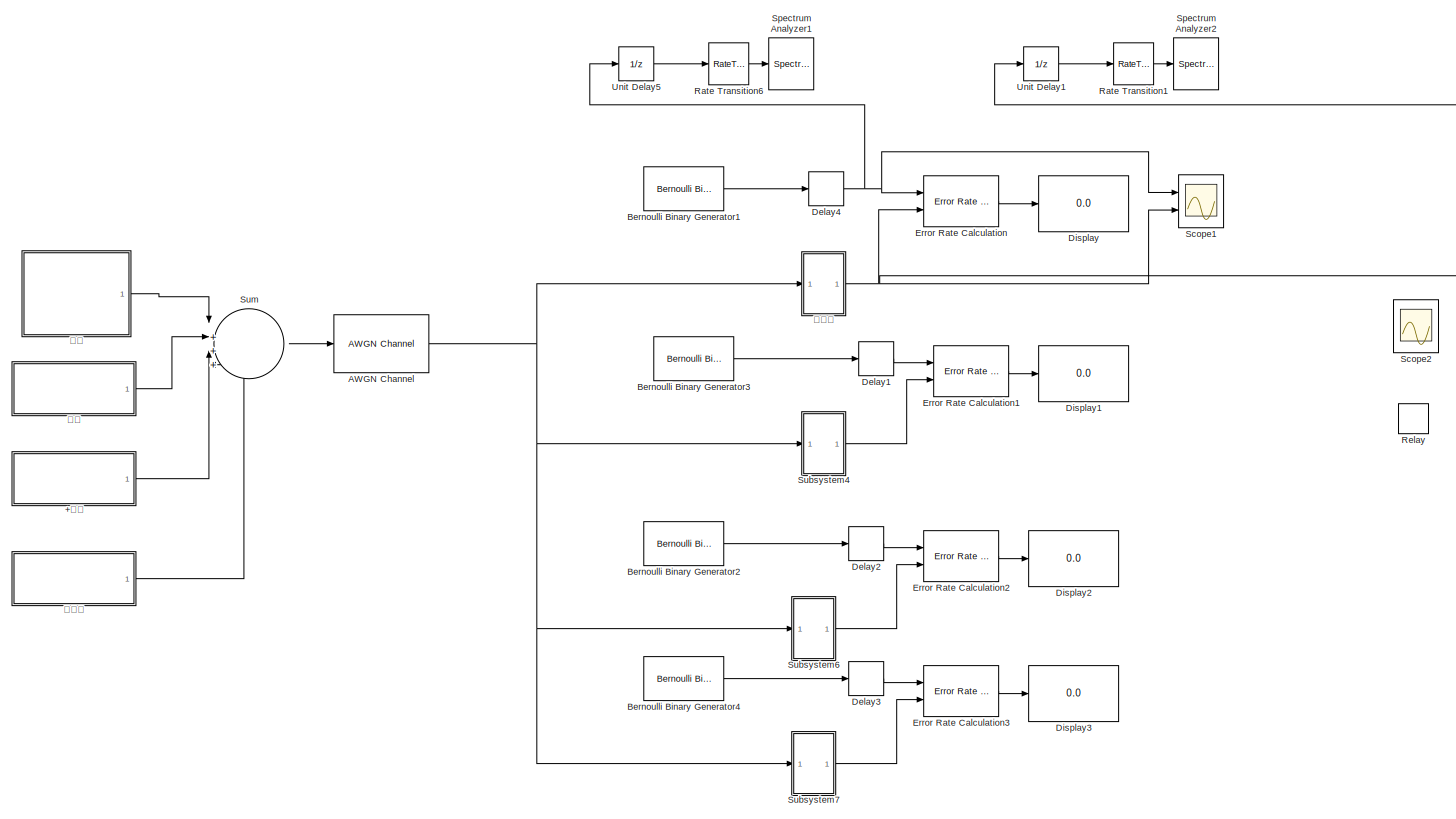
[diagram: root canvas - part 1/1, most of the canvas]
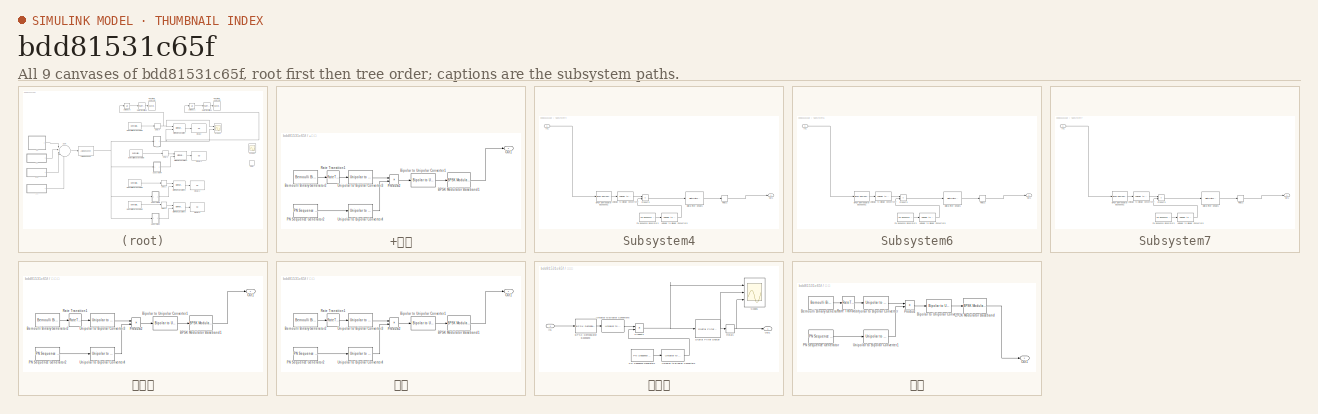
[diagram: thumbnail index - all 9 canvases of the model, root first then tree order]
MODEL slx_bdd81531c65f
KIND model
CONFIG AbsTol = auto
CONFIG EnableMultiTasking = off
CONFIG FixedStep = auto
CONFIG MaxStep = auto
CONFIG MinStep = auto
CONFIG RelTol = 1e-3
CONFIG SampleTimeConstraint = Unconstrained
CONFIG Solver = VariableStepAuto
CONFIG SolverName = VariableStepAuto
CONFIG StartTime = 0.0
CONFIG StopTime = 10
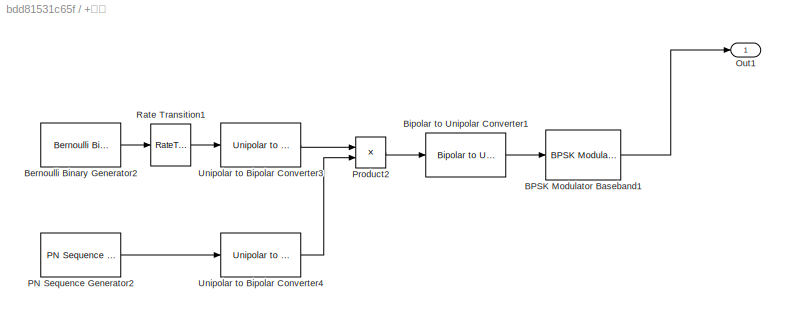
BLOCK [SubSystem] +关注
  Ports = [0, 1]
  RequestExecContextInheritance = off
BLOCK [Reference] +关注/BPSK Modulator Baseband1  REF=commdigbbndpm3/BPSK
Modulator
Baseband
  Ports = [1, 1]
  SourceBlock = commdigbbndpm3/BPSK\nModulator\nBaseband
  SourceProductBaseCode = CM
  SourceType = BPSK Modulator Baseband
BLOCK [Reference] +关注/Bernoulli Binary Generator2  REF=commrandsrc3/Bernoulli Binary
Generator
  Ports = [0, 1]
  SourceBlock = commrandsrc3/Bernoulli Binary\nGenerator
  SourceProductBaseCode = CM
  SourceType = Bernoulli Binary Generator
BLOCK [Reference] +关注/Bipolar to Unipolar Converter1  REF=commutil2/Bipolar to
Unipolar
Converter
  Ports = [1, 1]
  SourceBlock = commutil2/Bipolar to\nUnipolar\nConverter
  SourceProductBaseCode = CM
  SourceType = Bipolar to Unipolar Converter
BLOCK [Outport] +关注/Out1
BLOCK [Reference] +关注/PN Sequence Generator2  REF=commseqgen3/PN Sequence
Generator
  Ports = [0, 1]
  SourceBlock = commseqgen3/PN Sequence\nGenerator
  SourceProductBaseCode = CM
  SourceType = PN Sequence Generator
BLOCK [Product] +关注/Product2
  Ports = [2, 1]
BLOCK [RateTransition] +关注/Rate Transition1
  OutPortSampleTime = 1/3200
  OutPortSampleTimeMultiple = 20
BLOCK [Reference] +关注/Unipolar to Bipolar Converter3  REF=commutil2/Unipolar to
Bipolar
Converter
  Ports = [1, 1]
  SourceBlock = commutil2/Unipolar to\nBipolar\nConverter
  SourceProductBaseCode = CM
  SourceType = Unipolar to Bipolar Converter
BLOCK [Reference] +关注/Unipolar to Bipolar Converter4  REF=commutil2/Unipolar to
Bipolar
Converter
  Ports = [1, 1]
  SourceBlock = commutil2/Unipolar to\nBipolar\nConverter
  SourceProductBaseCode = CM
  SourceType = Unipolar to Bipolar Converter
BLOCK [Reference] AWGN Channel  REF=commchan3/AWGN
Channel
  Ports = [1, 1]
  SourceBlock = commchan3/AWGN\nChannel
  SourceProductBaseCode = CM
  SourceType = AWGN Channel
  UserDataPersistent = on
BLOCK [Reference] Bernoulli Binary Generator1  REF=commrandsrc3/Bernoulli Binary
Generator
  Ports = [0, 1]
  SourceBlock = commrandsrc3/Bernoulli Binary\nGenerator
  SourceProductBaseCode = CM
  SourceType = Bernoulli Binary Generator
BLOCK [Reference] Bernoulli Binary Generator2  REF=commrandsrc3/Bernoulli Binary
Generator
  Ports = [0, 1]
  SourceBlock = commrandsrc3/Bernoulli Binary\nGenerator
  SourceProductBaseCode = CM
  SourceType = Bernoulli Binary Generator
BLOCK [Reference] Bernoulli Binary Generator3  REF=commrandsrc3/Bernoulli Binary
Generator
  Ports = [0, 1]
  SourceBlock = commrandsrc3/Bernoulli Binary\nGenerator
  SourceProductBaseCode = CM
  SourceType = Bernoulli Binary Generator
BLOCK [Reference] Bernoulli Binary Generator4  REF=commrandsrc3/Bernoulli Binary
Generator
  Ports = [0, 1]
  SourceBlock = commrandsrc3/Bernoulli Binary\nGenerator
  SourceProductBaseCode = CM
  SourceType = Bernoulli Binary Generator
BLOCK [Delay] Delay1
  InputPortMap = u0
  Ports = [1, 1]
BLOCK [Delay] Delay2
  InputPortMap = u0
  Ports = [1, 1]
BLOCK [Delay] Delay3
  InputPortMap = u0
  Ports = [1, 1]
BLOCK [Delay] Delay4
  InputPortMap = u0
  Ports = [1, 1]
BLOCK [Display] Display
  Decimation = 1
  Ports = [1]
BLOCK [Display] Display1
  Decimation = 1
  Ports = [1]
BLOCK [Display] Display2
  Decimation = 1
  Ports = [1]
BLOCK [Display] Display3
  Decimation = 1
  Ports = [1]
BLOCK [Reference] Error Rate Calculation  REF=commsink2/Error Rate
Calculation
  Ports = [2, 1]
  SourceBlock = commsink2/Error Rate\nCalculation
  SourceProductBaseCode = CM
  SourceType = Error Rate Calculation
BLOCK [Reference] Error Rate Calculation1  REF=commsink2/Error Rate
Calculation
  Ports = [2, 1]
  SourceBlock = commsink2/Error Rate\nCalculation
  SourceProductBaseCode = CM
  SourceType = Error Rate Calculation
BLOCK [Reference] Error Rate Calculation2  REF=commsink2/Error Rate
Calculation
  Ports = [2, 1]
  SourceBlock = commsink2/Error Rate\nCalculation
  SourceProductBaseCode = CM
  SourceType = Error Rate Calculation
BLOCK [Reference] Error Rate Calculation3  REF=commsink2/Error Rate
Calculation
  Ports = [2, 1]
  SourceBlock = commsink2/Error Rate\nCalculation
  SourceProductBaseCode = CM
  SourceType = Error Rate Calculation
BLOCK [RateTransition] Rate Transition1
  OutPortSampleTime = 1/3200
BLOCK [RateTransition] Rate Transition6
  OutPortSampleTime = 1/3200
BLOCK [Relay] Relay
BLOCK [Scope] Scope1
  Floating = off
  NumInputPorts = 2
  Ports = [2]
  ScopeSpecificationString = Simulink.scopes.TimeScopeBlockCfg('CurrentConfiguration', extmgr.ConfigurationSet(extmgr.Configuration('Core','General UI',true),extmgr.Configuration('Core','Source UI',true),extmgr.Configuration('Sources','WiredSimulink',true,'DataLoggingVariableName','ScopeData1'),extmgr.Configuration('Visuals','Time Domain',true,'SerializedDisplays',{struct('MinYLimReal','-0.125','MaxYLimReal','1.125','YLabelRe...<+2068ch>
BLOCK [Scope] Scope2
  Floating = off
  NumInputPorts = 2
  Ports = [2]
  ScopeSpecificationString = Simulink.scopes.TimeScopeBlockCfg('CurrentConfiguration', extmgr.ConfigurationSet(extmgr.Configuration('Core','General UI',true),extmgr.Configuration('Core','Source UI',true),extmgr.Configuration('Sources','WiredSimulink',true,'DataLoggingVariableName','ScopeData2'),extmgr.Configuration('Visuals','Time Domain',true,'SerializedDisplays',{struct('MinYLimReal','-0.125','MaxYLimReal','1.125','YLabelRe...<+2071ch>
BLOCK [SpectrumAnalyzer] Spectrum Analyzer1
  Ports = [1]
  ScopeSpecificationString = spbscopes.SpectrumAnalyzerBlockCfg('CurrentConfiguration', extmgr.ConfigurationSet(extmgr.Configuration('Core','General UI',true),extmgr.Configuration('Core','Source UI',true),extmgr.Configuration('Sources','WiredSimulink',true),extmgr.Configuration('Visuals','Spectrum',true,'AxesProperties',struct('Color',{[0 0 0],[0 0 0]},'XColor',{[0.686274509803922 0.686274509803922 0.686274509803922],[0.68627...<+1917ch>
BLOCK [SpectrumAnalyzer] Spectrum Analyzer2
  Ports = [1]
  ScopeSpecificationString = spbscopes.SpectrumAnalyzerBlockCfg('CurrentConfiguration', extmgr.ConfigurationSet(extmgr.Configuration('Core','General UI',true),extmgr.Configuration('Core','Source UI',true),extmgr.Configuration('Sources','WiredSimulink',true),extmgr.Configuration('Visuals','Spectrum',true,'AxesProperties',struct('Color',{[0 0 0],[0 0 0]},'XColor',{[0.686274509803922 0.686274509803922 0.686274509803922],[0.68627...<+1944ch>
BLOCK [SubSystem] Subsystem4
  Ports = [1, 1]
  RequestExecContextInheritance = off
BLOCK [Reference] Subsystem4/BPSK Demodulator Baseband1  REF=commdigbbndpm3/BPSK
Demodulator
Baseband
  Ports = [1, 1]
  SourceBlock = commdigbbndpm3/BPSK\nDemodulator\nBaseband
  SourceProductBaseCode = CM
  SourceType = BPSK Demodulator Baseband
BLOCK [Reference] Subsystem4/Digital Filter Design1  REF=dsparch4/Digital
Filter Design
  Ports = [1, 1]
  SourceBlock = dsparch4/Digital\nFilter Design
  SourceProductBaseCode = DS
  SourceType = Digital Filter Design
  UserDataPersistent = on
BLOCK [Inport] Subsystem4/In1
BLOCK [Outport] Subsystem4/Out1
BLOCK [Reference] Subsystem4/PN Sequence Generator3  REF=commseqgen3/PN Sequence
Generator
  Ports = [0, 1]
  SourceBlock = commseqgen3/PN Sequence\nGenerator
  SourceProductBaseCode = CM
  SourceType = PN Sequence Generator
BLOCK [Product] Subsystem4/Product3
  Ports = [2, 1]
BLOCK [Relay] Subsystem4/Relay2
  OffSwitchValue = 0
  OnSwitchValue = 0
BLOCK [Reference] Subsystem4/Unipolar to Bipolar Converter5  REF=commutil2/Unipolar to
Bipolar
Converter
  Ports = [1, 1]
  SourceBlock = commutil2/Unipolar to\nBipolar\nConverter
  SourceProductBaseCode = CM
  SourceType = Unipolar to Bipolar Converter
BLOCK [Reference] Subsystem4/Unipolar to Bipolar Converter7  REF=commutil2/Unipolar to
Bipolar
Converter
  Ports = [1, 1]
  SourceBlock = commutil2/Unipolar to\nBipolar\nConverter
  SourceProductBaseCode = CM
  SourceType = Unipolar to Bipolar Converter
BLOCK [SubSystem] Subsystem6
  Ports = [1, 1]
  RequestExecContextInheritance = off
BLOCK [Reference] Subsystem6/BPSK Demodulator Baseband1  REF=commdigbbndpm3/BPSK
Demodulator
Baseband
  Ports = [1, 1]
  SourceBlock = commdigbbndpm3/BPSK\nDemodulator\nBaseband
  SourceProductBaseCode = CM
  SourceType = BPSK Demodulator Baseband
BLOCK [Reference] Subsystem6/Digital Filter Design1  REF=dsparch4/Digital
Filter Design
  Ports = [1, 1]
  SourceBlock = dsparch4/Digital\nFilter Design
  SourceProductBaseCode = DS
  SourceType = Digital Filter Design
  UserDataPersistent = on
BLOCK [Inport] Subsystem6/In1
BLOCK [Outport] Subsystem6/Out1
BLOCK [Reference] Subsystem6/PN Sequence Generator3  REF=commseqgen3/PN Sequence
Generator
  Ports = [0, 1]
  SourceBlock = commseqgen3/PN Sequence\nGenerator
  SourceProductBaseCode = CM
  SourceType = PN Sequence Generator
BLOCK [Product] Subsystem6/Product3
  Ports = [2, 1]
BLOCK [Relay] Subsystem6/Relay2
  OffSwitchValue = 0
  OnSwitchValue = 0
BLOCK [Reference] Subsystem6/Unipolar to Bipolar Converter5  REF=commutil2/Unipolar to
Bipolar
Converter
  Ports = [1, 1]
  SourceBlock = commutil2/Unipolar to\nBipolar\nConverter
  SourceProductBaseCode = CM
  SourceType = Unipolar to Bipolar Converter
BLOCK [Reference] Subsystem6/Unipolar to Bipolar Converter7  REF=commutil2/Unipolar to
Bipolar
Converter
  Ports = [1, 1]
  SourceBlock = commutil2/Unipolar to\nBipolar\nConverter
  SourceProductBaseCode = CM
  SourceType = Unipolar to Bipolar Converter
BLOCK [SubSystem] Subsystem7
  Ports = [1, 1]
  RequestExecContextInheritance = off
BLOCK [Reference] Subsystem7/BPSK Demodulator Baseband1  REF=commdigbbndpm3/BPSK
Demodulator
Baseband
  Ports = [1, 1]
  SourceBlock = commdigbbndpm3/BPSK\nDemodulator\nBaseband
  SourceProductBaseCode = CM
  SourceType = BPSK Demodulator Baseband
BLOCK [Reference] Subsystem7/Digital Filter Design1  REF=dsparch4/Digital
Filter Design
  Ports = [1, 1]
  SourceBlock = dsparch4/Digital\nFilter Design
  SourceProductBaseCode = DS
  SourceType = Digital Filter Design
  UserDataPersistent = on
BLOCK [Inport] Subsystem7/In1
BLOCK [Outport] Subsystem7/Out1
BLOCK [Reference] Subsystem7/PN Sequence Generator3  REF=commseqgen3/PN Sequence
Generator
  Ports = [0, 1]
  SourceBlock = commseqgen3/PN Sequence\nGenerator
  SourceProductBaseCode = CM
  SourceType = PN Sequence Generator
BLOCK [Product] Subsystem7/Product3
  Ports = [2, 1]
BLOCK [Relay] Subsystem7/Relay2
  OffSwitchValue = 0
  OnSwitchValue = 0
BLOCK [Reference] Subsystem7/Unipolar to Bipolar Converter5  REF=commutil2/Unipolar to
Bipolar
Converter
  Ports = [1, 1]
  SourceBlock = commutil2/Unipolar to\nBipolar\nConverter
  SourceProductBaseCode = CM
  SourceType = Unipolar to Bipolar Converter
BLOCK [Reference] Subsystem7/Unipolar to Bipolar Converter7  REF=commutil2/Unipolar to
Bipolar
Converter
  Ports = [1, 1]
  SourceBlock = commutil2/Unipolar to\nBipolar\nConverter
  SourceProductBaseCode = CM
  SourceType = Unipolar to Bipolar Converter
BLOCK [Sum] Sum
  Inputs = |++++
  OutDataTypeStr = double
  OutMax = [1]
  OutMin = [-1]
  Ports = [4, 1]
BLOCK [UnitDelay] Unit Delay1
  HasFrameUpgradeWarning = on
  SampleTime = -1
BLOCK [UnitDelay] Unit Delay5
  HasFrameUpgradeWarning = on
  SampleTime = -1
BLOCK [SubSystem] 发送端
  Ports = [0, 1]
  RequestExecContextInheritance = off
BLOCK [Reference] 发送端/BPSK Modulator Baseband1  REF=commdigbbndpm3/BPSK
Modulator
Baseband
  Ports = [1, 1]
  SourceBlock = commdigbbndpm3/BPSK\nModulator\nBaseband
  SourceProductBaseCode = CM
  SourceType = BPSK Modulator Baseband
BLOCK [Reference] 发送端/Bernoulli Binary Generator2  REF=commrandsrc3/Bernoulli Binary
Generator
  Ports = [0, 1]
  SourceBlock = commrandsrc3/Bernoulli Binary\nGenerator
  SourceProductBaseCode = CM
  SourceType = Bernoulli Binary Generator
BLOCK [Reference] 发送端/Bipolar to Unipolar Converter1  REF=commutil2/Bipolar to
Unipolar
Converter
  Ports = [1, 1]
  SourceBlock = commutil2/Bipolar to\nUnipolar\nConverter
  SourceProductBaseCode = CM
  SourceType = Bipolar to Unipolar Converter
BLOCK [Outport] 发送端/Out1
BLOCK [Reference] 发送端/PN Sequence Generator2  REF=commseqgen3/PN Sequence
Generator
  Ports = [0, 1]
  SourceBlock = commseqgen3/PN Sequence\nGenerator
  SourceProductBaseCode = CM
  SourceType = PN Sequence Generator
BLOCK [Product] 发送端/Product2
  Ports = [2, 1]
BLOCK [RateTransition] 发送端/Rate Transition1
  OutPortSampleTime = 1/3200
  OutPortSampleTimeMultiple = 20
BLOCK [Reference] 发送端/Unipolar to Bipolar Converter3  REF=commutil2/Unipolar to
Bipolar
Converter
  Ports = [1, 1]
  SourceBlock = commutil2/Unipolar to\nBipolar\nConverter
  SourceProductBaseCode = CM
  SourceType = Unipolar to Bipolar Converter
BLOCK [Reference] 发送端/Unipolar to Bipolar Converter4  REF=commutil2/Unipolar to
Bipolar
Converter
  Ports = [1, 1]
  SourceBlock = commutil2/Unipolar to\nBipolar\nConverter
  SourceProductBaseCode = CM
  SourceType = Unipolar to Bipolar Converter
BLOCK [SubSystem] 投币
  Ports = [0, 1]
  RequestExecContextInheritance = off
BLOCK [Reference] 投币/BPSK Modulator Baseband1  REF=commdigbbndpm3/BPSK
Modulator
Baseband
  Ports = [1, 1]
  SourceBlock = commdigbbndpm3/BPSK\nModulator\nBaseband
  SourceProductBaseCode = CM
  SourceType = BPSK Modulator Baseband
BLOCK [Reference] 投币/Bernoulli Binary Generator2  REF=commrandsrc3/Bernoulli Binary
Generator
  Ports = [0, 1]
  SourceBlock = commrandsrc3/Bernoulli Binary\nGenerator
  SourceProductBaseCode = CM
  SourceType = Bernoulli Binary Generator
BLOCK [Reference] 投币/Bipolar to Unipolar Converter1  REF=commutil2/Bipolar to
Unipolar
Converter
  Ports = [1, 1]
  SourceBlock = commutil2/Bipolar to\nUnipolar\nConverter
  SourceProductBaseCode = CM
  SourceType = Bipolar to Unipolar Converter
BLOCK [Outport] 投币/Out1
BLOCK [Reference] 投币/PN Sequence Generator2  REF=commseqgen3/PN Sequence
Generator
  Ports = [0, 1]
  SourceBlock = commseqgen3/PN Sequence\nGenerator
  SourceProductBaseCode = CM
  SourceType = PN Sequence Generator
BLOCK [Product] 投币/Product2
  Ports = [2, 1]
BLOCK [RateTransition] 投币/Rate Transition1
  OutPortSampleTime = 1/3200
  OutPortSampleTimeMultiple = 20
BLOCK [Reference] 投币/Unipolar to Bipolar Converter3  REF=commutil2/Unipolar to
Bipolar
Converter
  Ports = [1, 1]
  SourceBlock = commutil2/Unipolar to\nBipolar\nConverter
  SourceProductBaseCode = CM
  SourceType = Unipolar to Bipolar Converter
BLOCK [Reference] 投币/Unipolar to Bipolar Converter4  REF=commutil2/Unipolar to
Bipolar
Converter
  Ports = [1, 1]
  SourceBlock = commutil2/Unipolar to\nBipolar\nConverter
  SourceProductBaseCode = CM
  SourceType = Unipolar to Bipolar Converter
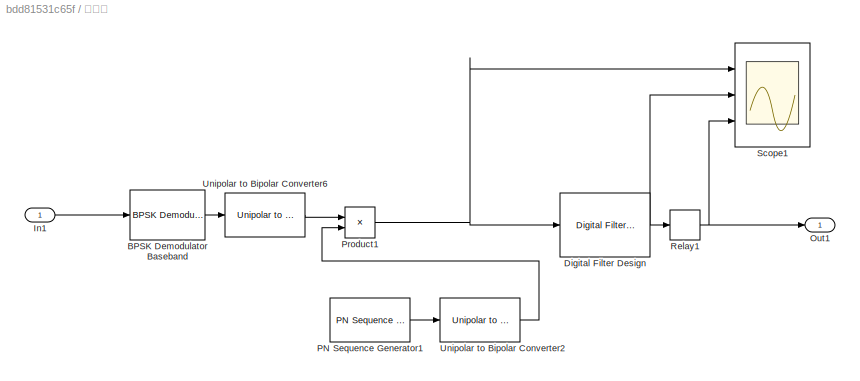
BLOCK [SubSystem] 接受端
  Ports = [1, 1]
  RequestExecContextInheritance = off
BLOCK [Reference] 接受端/BPSK Demodulator Baseband  REF=commdigbbndpm3/BPSK
Demodulator
Baseband
  Ports = [1, 1]
  SourceBlock = commdigbbndpm3/BPSK\nDemodulator\nBaseband
  SourceProductBaseCode = CM
  SourceType = BPSK Demodulator Baseband
BLOCK [Reference] 接受端/Digital Filter Design  REF=dsparch4/Digital
Filter Design
  Ports = [1, 1]
  SourceBlock = dsparch4/Digital\nFilter Design
  SourceProductBaseCode = DS
  SourceType = Digital Filter Design
  UserDataPersistent = on
BLOCK [Inport] 接受端/In1
BLOCK [Outport] 接受端/Out1
BLOCK [Reference] 接受端/PN Sequence Generator1  REF=commseqgen3/PN Sequence
Generator
  Ports = [0, 1]
  SourceBlock = commseqgen3/PN Sequence\nGenerator
  SourceProductBaseCode = CM
  SourceType = PN Sequence Generator
BLOCK [Product] 接受端/Product1
  Ports = [2, 1]
BLOCK [Relay] 接受端/Relay1
  OffSwitchValue = 0
  OnSwitchValue = 0
BLOCK [Scope] 接受端/Scope1
  Floating = off
  NumInputPorts = 3
  Ports = [3]
  ScopeSpecificationString = Simulink.scopes.TimeScopeBlockCfg('CurrentConfiguration', extmgr.ConfigurationSet(extmgr.Configuration('Core','General UI',true),extmgr.Configuration('Core','Source UI',true),extmgr.Configuration('Sources','WiredSimulink',true),extmgr.Configuration('Visuals','Time Domain',true,'SerializedDisplays',{struct('MinYLimReal','-1.25','MaxYLimReal','1.25','YLabelReal','','MinYLimMag','0.00000','MaxYLimMag...<+2750ch>
BLOCK [Reference] 接受端/Unipolar to Bipolar Converter2  REF=commutil2/Unipolar to
Bipolar
Converter
  Ports = [1, 1]
  SourceBlock = commutil2/Unipolar to\nBipolar\nConverter
  SourceProductBaseCode = CM
  SourceType = Unipolar to Bipolar Converter
BLOCK [Reference] 接受端/Unipolar to Bipolar Converter6  REF=commutil2/Unipolar to
Bipolar
Converter
  Ports = [1, 1]
  SourceBlock = commutil2/Unipolar to\nBipolar\nConverter
  SourceProductBaseCode = CM
  SourceType = Unipolar to Bipolar Converter
BLOCK [SubSystem] 点赞
  Ports = [0, 1]
  RequestExecContextInheritance = off
BLOCK [Reference] 点赞/BPSK Modulator Baseband  REF=commdigbbndpm3/BPSK
Modulator
Baseband
  Ports = [1, 1]
  SourceBlock = commdigbbndpm3/BPSK\nModulator\nBaseband
  SourceProductBaseCode = CM
  SourceType = BPSK Modulator Baseband
BLOCK [Reference] 点赞/Bernoulli Binary Generator  REF=commrandsrc3/Bernoulli Binary
Generator
  Ports = [0, 1]
  SourceBlock = commrandsrc3/Bernoulli Binary\nGenerator
  SourceProductBaseCode = CM
  SourceType = Bernoulli Binary Generator
BLOCK [Reference] 点赞/Bipolar to Unipolar Converter  REF=commutil2/Bipolar to
Unipolar
Converter
  Ports = [1, 1]
  SourceBlock = commutil2/Bipolar to\nUnipolar\nConverter
  SourceProductBaseCode = CM
  SourceType = Bipolar to Unipolar Converter
BLOCK [Outport] 点赞/Out1
BLOCK [Reference] 点赞/PN Sequence Generator  REF=commseqgen3/PN Sequence
Generator
  Ports = [0, 1]
  SourceBlock = commseqgen3/PN Sequence\nGenerator
  SourceProductBaseCode = CM
  SourceType = PN Sequence Generator
BLOCK [Product] 点赞/Product
  Ports = [2, 1]
BLOCK [RateTransition] 点赞/Rate Transition
  OutPortSampleTime = 1/6400
  OutPortSampleTimeMultiple = 20
BLOCK [Reference] 点赞/Unipolar to Bipolar Converter  REF=commutil2/Unipolar to
Bipolar
Converter
  Ports = [1, 1]
  SourceBlock = commutil2/Unipolar to\nBipolar\nConverter
  SourceProductBaseCode = CM
  SourceType = Unipolar to Bipolar Converter
BLOCK [Reference] 点赞/Unipolar to Bipolar Converter1  REF=commutil2/Unipolar to
Bipolar
Converter
  Ports = [1, 1]
  SourceBlock = commutil2/Unipolar to\nBipolar\nConverter
  SourceProductBaseCode = CM
  SourceType = Unipolar to Bipolar Converter
LINE +关注/BPSK Modulator Baseband1:1 -> +关注/Out1:1
LINE +关注/Bernoulli Binary Generator2:1 -> +关注/Rate Transition1:1
LINE +关注/Bipolar to Unipolar Converter1:1 -> +关注/BPSK Modulator Baseband1:1
LINE +关注/PN Sequence Generator2:1 -> +关注/Unipolar to Bipolar Converter4:1
LINE +关注/Product2:1 -> +关注/Bipolar to Unipolar Converter1:1
LINE +关注/Rate Transition1:1 -> +关注/Unipolar to Bipolar Converter3:1
LINE +关注/Unipolar to Bipolar Converter3:1 -> +关注/Product2:1
LINE +关注/Unipolar to Bipolar Converter4:1 -> +关注/Product2:2
LINE +关注:1 -> Sum:3
NET AWGN Channel:1 -> Subsystem4:1, Subsystem6:1, Subsystem7:1, 接受端:1
LINE Bernoulli Binary Generator1:1 -> Delay4:1
LINE Bernoulli Binary Generator2:1 -> Delay2:1
LINE Bernoulli Binary Generator3:1 -> Delay1:1
LINE Bernoulli Binary Generator4:1 -> Delay3:1
LINE Delay1:1 -> Error Rate Calculation1:1
LINE Delay2:1 -> Error Rate Calculation2:1
LINE Delay3:1 -> Error Rate Calculation3:1
NET Delay4:1 -> Error Rate Calculation:1, Scope1:1, Unit Delay5:1
LINE Error Rate Calculation1:1 -> Display1:1
LINE Error Rate Calculation2:1 -> Display2:1
LINE Error Rate Calculation3:1 -> Display3:1
LINE Error Rate Calculation:1 -> Display:1
LINE Rate Transition1:1 -> Spectrum Analyzer2:1
LINE Rate Transition6:1 -> Spectrum Analyzer1:1
LINE Subsystem4/BPSK Demodulator Baseband1:1 -> Subsystem4/Unipolar to Bipolar Converter7:1
LINE Subsystem4/Digital Filter Design1:1 -> Subsystem4/Relay2:1
LINE Subsystem4/In1:1 -> Subsystem4/BPSK Demodulator Baseband1:1
LINE Subsystem4/PN Sequence Generator3:1 -> Subsystem4/Unipolar to Bipolar Converter5:1
LINE Subsystem4/Product3:1 -> Subsystem4/Digital Filter Design1:1
LINE Subsystem4/Relay2:1 -> Subsystem4/Out1:1
LINE Subsystem4/Unipolar to Bipolar Converter5:1 -> Subsystem4/Product3:2
LINE Subsystem4/Unipolar to Bipolar Converter7:1 -> Subsystem4/Product3:1
LINE Subsystem4:1 -> Error Rate Calculation1:2
LINE Subsystem6/BPSK Demodulator Baseband1:1 -> Subsystem6/Unipolar to Bipolar Converter7:1
LINE Subsystem6/Digital Filter Design1:1 -> Subsystem6/Relay2:1
LINE Subsystem6/In1:1 -> Subsystem6/BPSK Demodulator Baseband1:1
LINE Subsystem6/PN Sequence Generator3:1 -> Subsystem6/Unipolar to Bipolar Converter5:1
LINE Subsystem6/Product3:1 -> Subsystem6/Digital Filter Design1:1
LINE Subsystem6/Relay2:1 -> Subsystem6/Out1:1
LINE Subsystem6/Unipolar to Bipolar Converter5:1 -> Subsystem6/Product3:2
LINE Subsystem6/Unipolar to Bipolar Converter7:1 -> Subsystem6/Product3:1
LINE Subsystem6:1 -> Error Rate Calculation2:2
LINE Subsystem7/BPSK Demodulator Baseband1:1 -> Subsystem7/Unipolar to Bipolar Converter7:1
LINE Subsystem7/Digital Filter Design1:1 -> Subsystem7/Relay2:1
LINE Subsystem7/In1:1 -> Subsystem7/BPSK Demodulator Baseband1:1
LINE Subsystem7/PN Sequence Generator3:1 -> Subsystem7/Unipolar to Bipolar Converter5:1
LINE Subsystem7/Product3:1 -> Subsystem7/Digital Filter Design1:1
LINE Subsystem7/Relay2:1 -> Subsystem7/Out1:1
LINE Subsystem7/Unipolar to Bipolar Converter5:1 -> Subsystem7/Product3:2
LINE Subsystem7/Unipolar to Bipolar Converter7:1 -> Subsystem7/Product3:1
LINE Subsystem7:1 -> Error Rate Calculation3:2
LINE Sum:1 -> AWGN Channel:1
LINE Unit Delay1:1 -> Rate Transition1:1
LINE Unit Delay5:1 -> Rate Transition6:1
LINE 发送端/BPSK Modulator Baseband1:1 -> 发送端/Out1:1
LINE 发送端/Bernoulli Binary Generator2:1 -> 发送端/Rate Transition1:1
LINE 发送端/Bipolar to Unipolar Converter1:1 -> 发送端/BPSK Modulator Baseband1:1
LINE 发送端/PN Sequence Generator2:1 -> 发送端/Unipolar to Bipolar Converter4:1
LINE 发送端/Product2:1 -> 发送端/Bipolar to Unipolar Converter1:1
LINE 发送端/Rate Transition1:1 -> 发送端/Unipolar to Bipolar Converter3:1
LINE 发送端/Unipolar to Bipolar Converter3:1 -> 发送端/Product2:1
LINE 发送端/Unipolar to Bipolar Converter4:1 -> 发送端/Product2:2
LINE 发送端:1 -> Sum:4
LINE 投币/BPSK Modulator Baseband1:1 -> 投币/Out1:1
LINE 投币/Bernoulli Binary Generator2:1 -> 投币/Rate Transition1:1
LINE 投币/Bipolar to Unipolar Converter1:1 -> 投币/BPSK Modulator Baseband1:1
LINE 投币/PN Sequence Generator2:1 -> 投币/Unipolar to Bipolar Converter4:1
LINE 投币/Product2:1 -> 投币/Bipolar to Unipolar Converter1:1
LINE 投币/Rate Transition1:1 -> 投币/Unipolar to Bipolar Converter3:1
LINE 投币/Unipolar to Bipolar Converter3:1 -> 投币/Product2:1
LINE 投币/Unipolar to Bipolar Converter4:1 -> 投币/Product2:2
LINE 投币:1 -> Sum:2
LINE 接受端/BPSK Demodulator Baseband:1 -> 接受端/Unipolar to Bipolar Converter6:1
NET 接受端/Digital Filter Design:1 -> 接受端/Relay1:1, 接受端/Scope1:2
LINE 接受端/In1:1 -> 接受端/BPSK Demodulator Baseband:1
LINE 接受端/PN Sequence Generator1:1 -> 接受端/Unipolar to Bipolar Converter2:1
NET 接受端/Product1:1 -> 接受端/Digital Filter Design:1, 接受端/Scope1:1
NET 接受端/Relay1:1 -> 接受端/Out1:1, 接受端/Scope1:3
LINE 接受端/Unipolar to Bipolar Converter2:1 -> 接受端/Product1:2
LINE 接受端/Unipolar to Bipolar Converter6:1 -> 接受端/Product1:1
NET 接受端:1 -> Error Rate Calculation:2, Scope1:2, Unit Delay1:1
LINE 点赞/BPSK Modulator Baseband:1 -> 点赞/Out1:1
LINE 点赞/Bernoulli Binary Generator:1 -> 点赞/Rate Transition:1
LINE 点赞/Bipolar to Unipolar Converter:1 -> 点赞/BPSK Modulator Baseband:1
LINE 点赞/PN Sequence Generator:1 -> 点赞/Unipolar to Bipolar Converter1:1
LINE 点赞/Product:1 -> 点赞/Bipolar to Unipolar Converter:1
LINE 点赞/Rate Transition:1 -> 点赞/Unipolar to Bipolar Converter:1
LINE 点赞/Unipolar to Bipolar Converter1:1 -> 点赞/Product:2
LINE 点赞/Unipolar to Bipolar Converter:1 -> 点赞/Product:1
LINE 点赞:1 -> Sum:1
note: NET lines group one-source signal fan-out (src -> all destinations, sorted); 1:1 wires keep LINE
